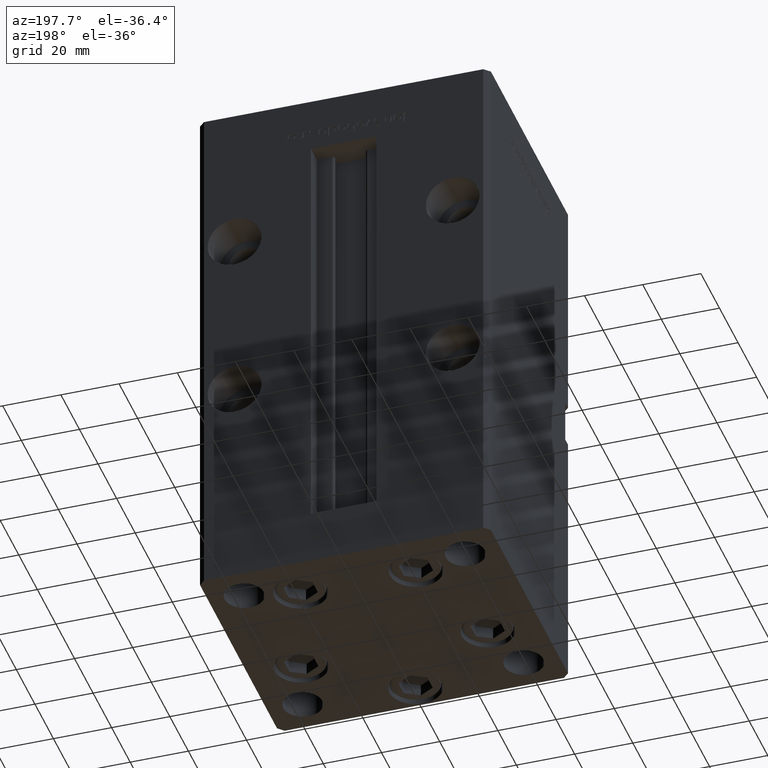
[diagram: clean part render]
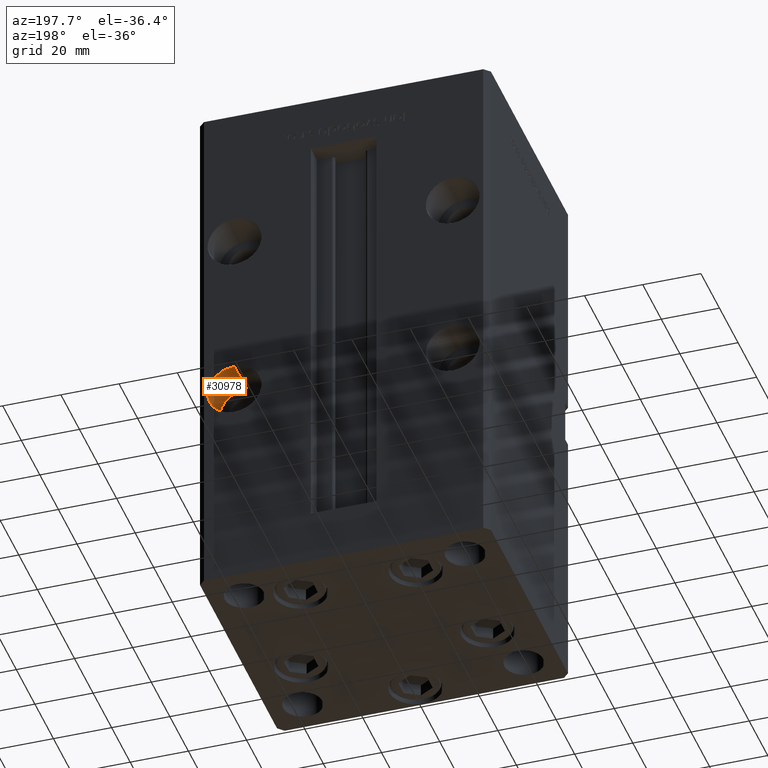
[diagram: same view with one face highlighted and labeled with its STEP entity id]
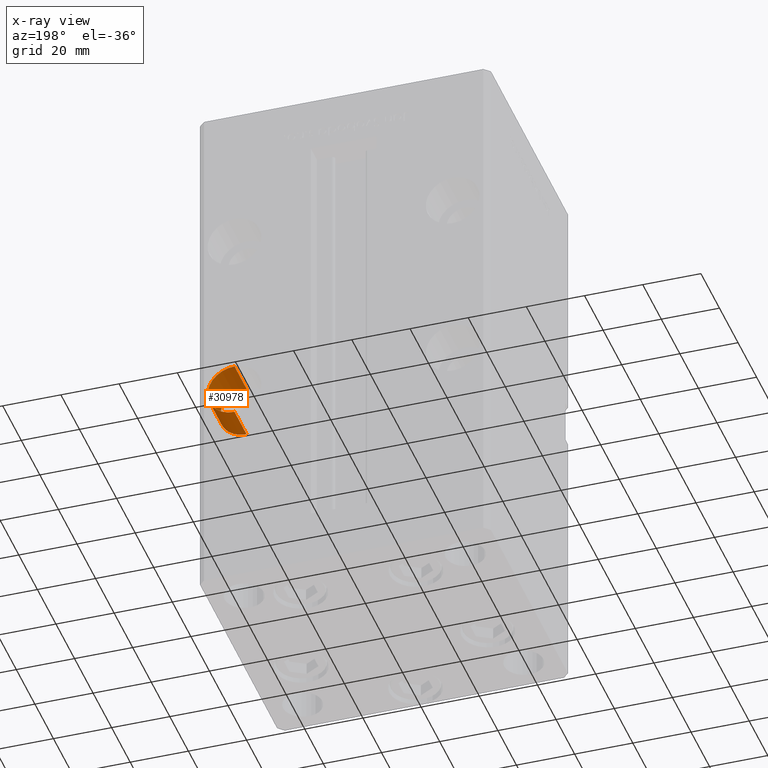
[diagram: x-ray of the same camera — body ghosted, the highlighted face saturated]
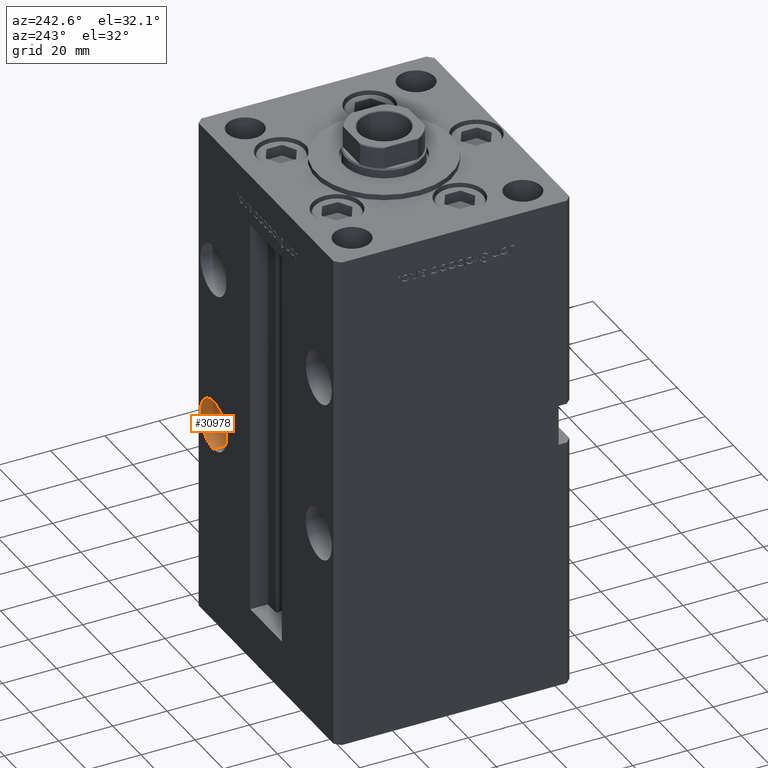
[diagram: same view with one face highlighted and labeled with its STEP entity id]
A machine part, auxiliary view. The second image highlights one B-rep face of the part: STEP entity #30978.
The next image is the same camera in x-ray: the body ghosted, the highlighted face saturated — about 0% of this face is hidden behind the body in this view.
A second angle (auxiliary view) of the same face is appended — the face is thin or edge-on in the first view.
In plain terms, the highlighted cylindrical surface (edge-blend (fillet) strip) has radius 9.25 mm, axis along (0, 1, 0).
Its self-contained STEP definition (entity closure, byte-faithful):
#2638 = DIRECTION ( 'NONE',  ( 0.000000000000000000, 0.000000000000000000, 1.000000000000000000 ) ) ;
#4578 = CARTESIAN_POINT ( 'NONE',  ( 37.50000000000000000, 30.50000000000000000, 56.49999999999998579 ) ) ;
#5052 = AXIS2_PLACEMENT_3D ( 'NONE', #4578, #40386, #16401 ) ;
#6124 = EDGE_CURVE ( 'NONE', #28965, #7708, #9191, .T. ) ;
#6140 = AXIS2_PLACEMENT_3D ( 'NONE', #13928, #26868, #2638 ) ;
#6293 = EDGE_CURVE ( 'NONE', #28965, #18563, #23050, .T. ) ;
#7347 = CARTESIAN_POINT ( 'NONE',  ( 37.50000000000000000, 30.50000000000000000, 47.24999999999998579 ) ) ;
#7708 = VERTEX_POINT ( 'NONE', #20331 ) ;
#8456 = VECTOR ( 'NONE', #25880, 1000.000000000000000 ) ;
#8547 = CARTESIAN_POINT ( 'NONE',  ( 37.50000000000000000, 30.50000000000000000, 65.74999999999998579 ) ) ;
#9191 = LINE ( 'NONE', #46320, #8456 ) ;
#13928 = CARTESIAN_POINT ( 'NONE',  ( 37.50000000000000000, 30.50000000000000000, 56.49999999999998579 ) ) ;
#15930 = LINE ( 'NONE', #7347, #44855 ) ;
#16401 = DIRECTION ( 'NONE',  ( 0.000000000000000000, 0.000000000000000000, -1.000000000000000000 ) ) ;
#18563 = VERTEX_POINT ( 'NONE', #28895 ) ;
#19488 = EDGE_LOOP ( 'NONE', ( #25396, #39350, #22993, #22783 ) ) ;
#20331 = CARTESIAN_POINT ( 'NONE',  ( 37.50000000000000000, 43.50000000000000000, 65.74999999999998579 ) ) ;
#21205 = CARTESIAN_POINT ( 'NONE',  ( 37.50000000000000000, 43.50000000000000000, 56.49999999999998579 ) ) ;
#22783 = ORIENTED_EDGE ( 'NONE', *, *, #23787, .T. ) ;
#22993 = ORIENTED_EDGE ( 'NONE', *, *, #6124, .T. ) ;
#23050 = CIRCLE ( 'NONE', #5052, 9.250000000000001776 ) ;
#23787 = EDGE_CURVE ( 'NONE', #7708, #31070, #34309, .T. ) ;
#25396 = ORIENTED_EDGE ( 'NONE', *, *, #35741, .F. ) ;
#25880 = DIRECTION ( 'NONE',  ( -0.000000000000000000, 1.000000000000000000, -0.000000000000000000 ) ) ;
#26868 = DIRECTION ( 'NONE',  ( -0.000000000000000000, 1.000000000000000000, -0.000000000000000000 ) ) ;
#28895 = CARTESIAN_POINT ( 'NONE',  ( 37.50000000000000000, 30.50000000000000000, 47.24999999999998579 ) ) ;
#28965 = VERTEX_POINT ( 'NONE', #8547 ) ;
#30978 = ADVANCED_FACE ( 'NONE', ( #39520 ), #34935, .F. ) ;
#31070 = VERTEX_POINT ( 'NONE', #38723 ) ;
#33858 = DIRECTION ( 'NONE',  ( 0.000000000000000000, 0.000000000000000000, -1.000000000000000000 ) ) ;
#34309 = CIRCLE ( 'NONE', #39455, 9.250000000000001776 ) ;
#34935 = CYLINDRICAL_SURFACE ( 'NONE', #6140, 9.250000000000001776 ) ;
#35741 = EDGE_CURVE ( 'NONE', #18563, #31070, #15930, .T. ) ;
#38723 = CARTESIAN_POINT ( 'NONE',  ( 37.50000000000000000, 43.50000000000000000, 47.24999999999998579 ) ) ;
#39350 = ORIENTED_EDGE ( 'NONE', *, *, #6293, .F. ) ;
#39455 = AXIS2_PLACEMENT_3D ( 'NONE', #21205, #49709, #33858 ) ;
#39520 = FACE_OUTER_BOUND ( 'NONE', #19488, .T. ) ;
#40386 = DIRECTION ( 'NONE',  ( 0.000000000000000000, 1.000000000000000000, -0.000000000000000000 ) ) ;
#44855 = VECTOR ( 'NONE', #48239, 1000.000000000000000 ) ;
#46320 = CARTESIAN_POINT ( 'NONE',  ( 37.50000000000000000, 30.50000000000000000, 65.74999999999998579 ) ) ;
#48239 = DIRECTION ( 'NONE',  ( -0.000000000000000000, 1.000000000000000000, -0.000000000000000000 ) ) ;
#49709 = DIRECTION ( 'NONE',  ( 0.000000000000000000, 1.000000000000000000, -0.000000000000000000 ) ) ;